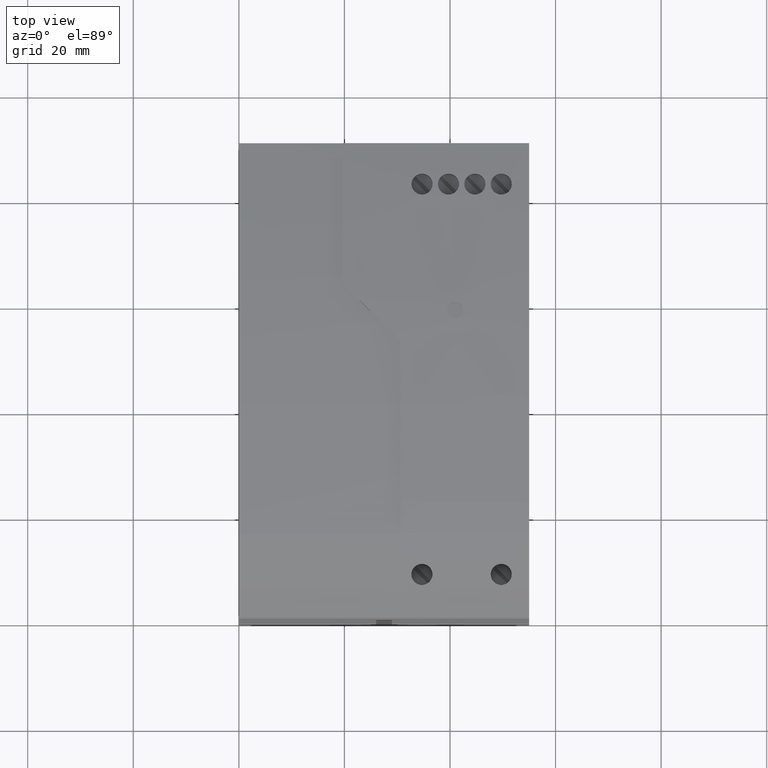
[diagram: clean part render]
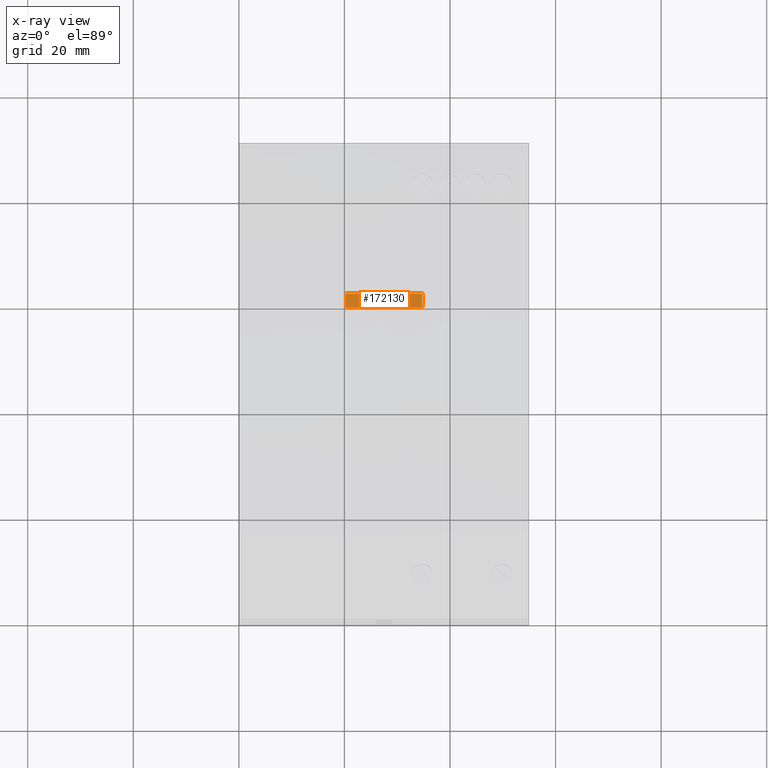
[diagram: x-ray — body ghosted, one internal face saturated and labeled with its STEP entity id]
A machine part, top view, then the same camera in x-ray: the body is ghosted and one INTERNAL B-rep face — a face not visible from any outside direction — is saturated and labeled: STEP entity #172130.
In plain terms, the highlighted planar face has unit normal (0, 0.2696, -0.963).
Its self-contained STEP definition (entity closure, byte-faithful):
#56750=CARTESIAN_POINT('',(17.7984763926468,5.22907227621138,-19.25));
#56760=VERTEX_POINT('',#56750);
#56810=CARTESIAN_POINT('',(17.7984763926468,5.22907227621138,0.));
#56820=DIRECTION('',(0.,0.,-1.));
#56830=VECTOR('',#56820,1.);
#56840=LINE('',#56810,#56830);
#56850=CARTESIAN_POINT('',(17.7984763926468,5.22907227621138,-33.75));
#56860=VERTEX_POINT('',#56850);
#56870=EDGE_CURVE('',#56760,#56860,#56840,.T.);
#171440=CARTESIAN_POINT('',(15.2984763926468,4.52907227621132,-33.75));
#171450=VERTEX_POINT('',#171440);
#171480=CARTESIAN_POINT('',(15.2984763926468,4.52907227621132,0.));
#171490=DIRECTION('',(0.,0.,1.));
#171500=VECTOR('',#171490,1.);
#171510=LINE('',#171480,#171500);
#171520=CARTESIAN_POINT('',(15.2984763926468,4.52907227621132,-19.25));
#171530=VERTEX_POINT('',#171520);
#171540=EDGE_CURVE('',#171450,#171530,#171510,.T.);
#171800=CARTESIAN_POINT('',(0.,0.245498886269802,-19.25));
#171810=DIRECTION('',(-0.962964019714175,-0.269629925519994,0.));
#171820=VECTOR('',#171810,1.);
#171830=LINE('',#171800,#171820);
#171840=EDGE_CURVE('',#56760,#171530,#171830,.T.);
#171970=CARTESIAN_POINT('',(17.7984763926468,5.22907227621138,-33.75));
#171980=DIRECTION('',(0.269629925519994,-0.962964019714175,0.));
#171990=DIRECTION('',(0.962964019714175,0.269629925519994,0.));
#172000=AXIS2_PLACEMENT_3D('',#171970,#171980,#171990);
#172010=PLANE('',#172000);
#172020=CARTESIAN_POINT('',(17.7984763926468,5.22907227621138,-33.75));
#172030=DIRECTION('',(-0.962964019714175,-0.269629925519994,0.));
#172040=VECTOR('',#172030,1.);
#172050=LINE('',#172020,#172040);
#172060=EDGE_CURVE('',#56860,#171450,#172050,.T.);
#172070=ORIENTED_EDGE('',*,*,#172060,.T.);
#172080=ORIENTED_EDGE('',*,*,#56870,.T.);
#172090=ORIENTED_EDGE('',*,*,#171840,.F.);
#172100=ORIENTED_EDGE('',*,*,#171540,.T.);
#172110=EDGE_LOOP('',(#172100,#172090,#172080,#172070));
#172120=FACE_OUTER_BOUND('',#172110,.T.);
#172130=ADVANCED_FACE('',(#172120),#172010,.F.);